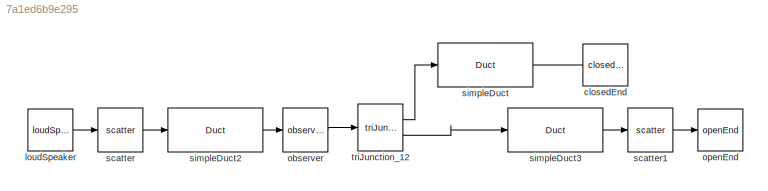
MODEL slx_7a1ed6b9e295
KIND model
CONFIG AbsTol = auto
CONFIG FixedStep = 1.0
CONFIG MaxStep = auto
CONFIG MinStep = auto
CONFIG RelTol = 1e-3
CONFIG SampleTimeConstraint = Unconstrained
CONFIG Solver = FixedStepDiscrete
CONFIG SolverMode = Auto
CONFIG SolverName = FixedStepDiscrete
CONFIG StartTime = 0.0
CONFIG StopTime = 1.0
BLOCK [Reference] closedEnd  REF=taXlibrary/closedEnd
  A = 1
  Mach = 0.1
  Ports = [1]
  SourceBlock = taXlibrary/closedEnd
  c = 100
  element = closedEnd
  loc = Downstream
  rho = 1.2
BLOCK [Reference] loudSpeaker  REF=taXlibrary/loudSpeaker
  A = 1.4
  Amp = 1
  AttributesFormatString = %<Amp> m/s
  Mach = 0.1
  Ports = [0, 1]
  SourceBlock = taXlibrary/loudSpeaker
  c = 100
  element = loudSpeaker
  loc = Upstream
  rho = 1.2
BLOCK [Reference] observer  REF=taXlibrary/observer
  Ports = [1, 1]
  SourceBlock = taXlibrary/observer
  element = observer
  property = p_u
BLOCK [Reference] openEnd  REF=taXlibrary/openEnd
  A = 1
  Mach = 0.1
  Ports = [1]
  SourceBlock = taXlibrary/openEnd
  c = 100
  element = openEnd
  loc = Downstream
  rho = 1.2
BLOCK [Reference] scatter  REF=taXlibrary/scatter
  Ports = [1, 1]
  SourceBlock = taXlibrary/scatter
  element = scatteringDummy
  loc = Upstream
BLOCK [Reference] scatter1  REF=taXlibrary/scatter
  Ports = [1, 1]
  SourceBlock = taXlibrary/scatter
  element = scatteringDummy
  loc = Downstream
BLOCK [Reference] simpleDuct  REF=taXlibrary/Duct
  AttributesFormatString = %<l> m
  Ports = [1, 1]
  SourceBlock = taXlibrary/Duct
  element = Duct
  l = 0.25
  minres = 40
  order = 3
  sensorPositions = []
BLOCK [Reference] simpleDuct2  REF=taXlibrary/Duct
  AttributesFormatString = %<l> m
  Ports = [1, 1]
  SourceBlock = taXlibrary/Duct
  element = Duct
  l = 0.25
  minres = 40
  order = 3
  sensorPositions = []
BLOCK [Reference] simpleDuct3  REF=taXlibrary/Duct
  AttributesFormatString = %<l> m
  Ports = [1, 1]
  SourceBlock = taXlibrary/Duct
  element = Duct
  l = 0.25
  minres = 40
  order = 3
  sensorPositions = []
BLOCK [Reference] triJunction_12  REF=taXlibrary/triJunction_12
  A = [0.01  0.02]
  Ports = [1, 2]
  SourceBlock = taXlibrary/triJunction_12
  element = triJunction_12
  zeta1 = 0
  zeta2 = 0
LINE loudSpeaker:1 -> scatter:1
LINE observer:1 -> triJunction_12:1
LINE scatter1:1 -> openEnd:1
LINE scatter:1 -> simpleDuct2:1
LINE simpleDuct2:1 -> observer:1
LINE simpleDuct3:1 -> scatter1:1
LINE simpleDuct:1 -> closedEnd:1
LINE triJunction_12:1 -> simpleDuct:1
LINE triJunction_12:2 -> simpleDuct3:1
